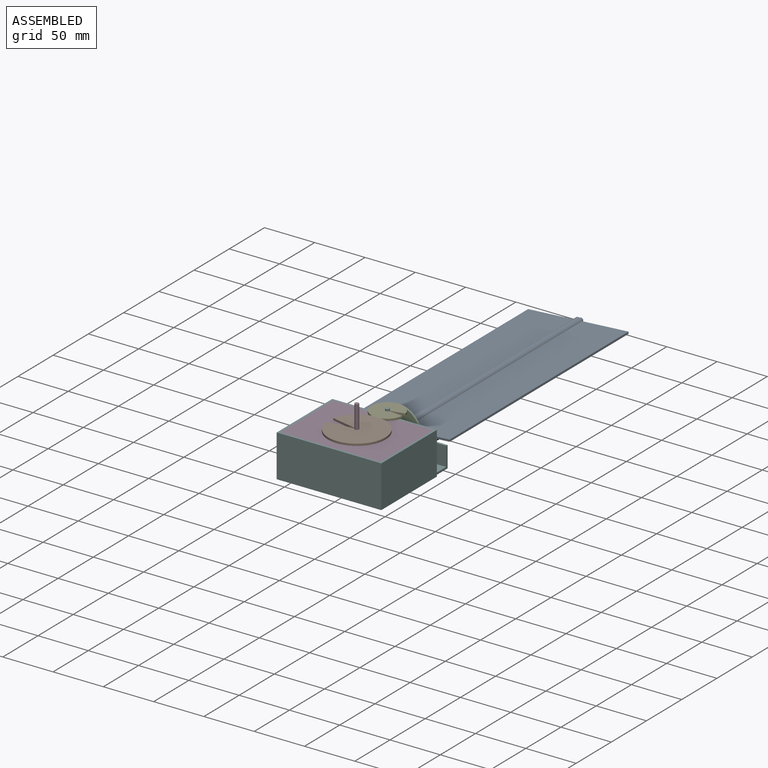
[diagram: assembled view]
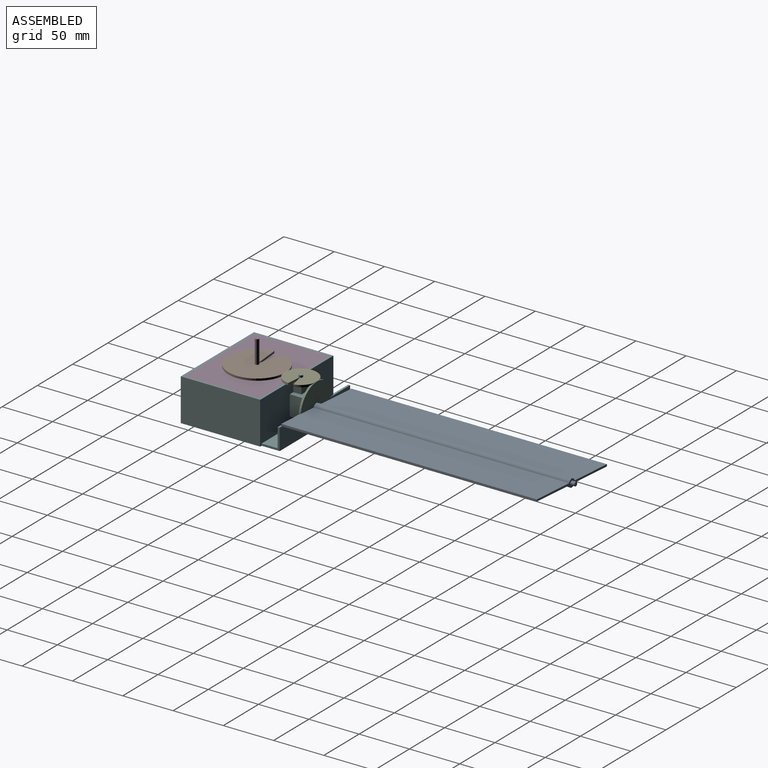
[diagram: assembled view, second angle]
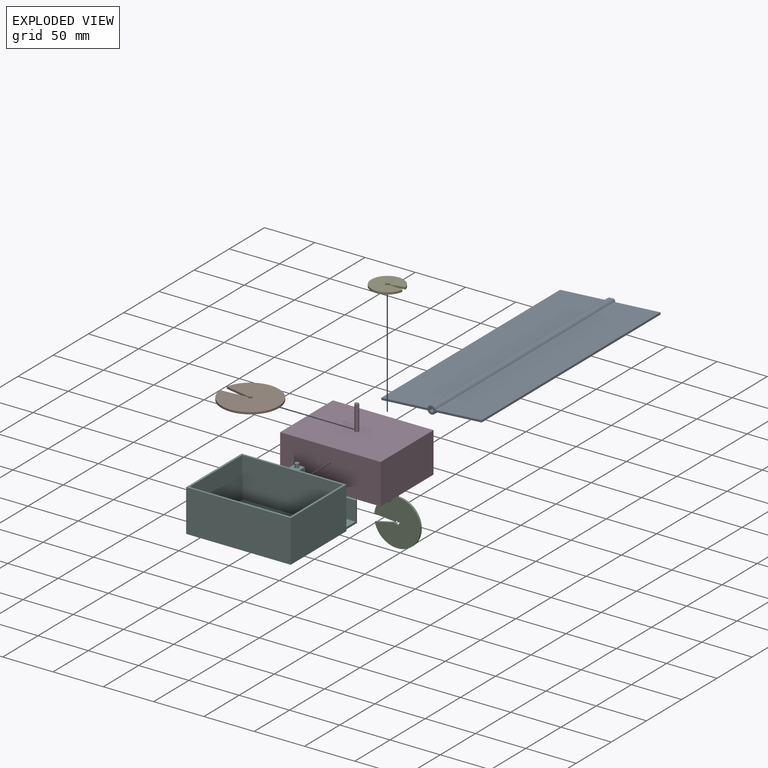
[diagram: exploded view]
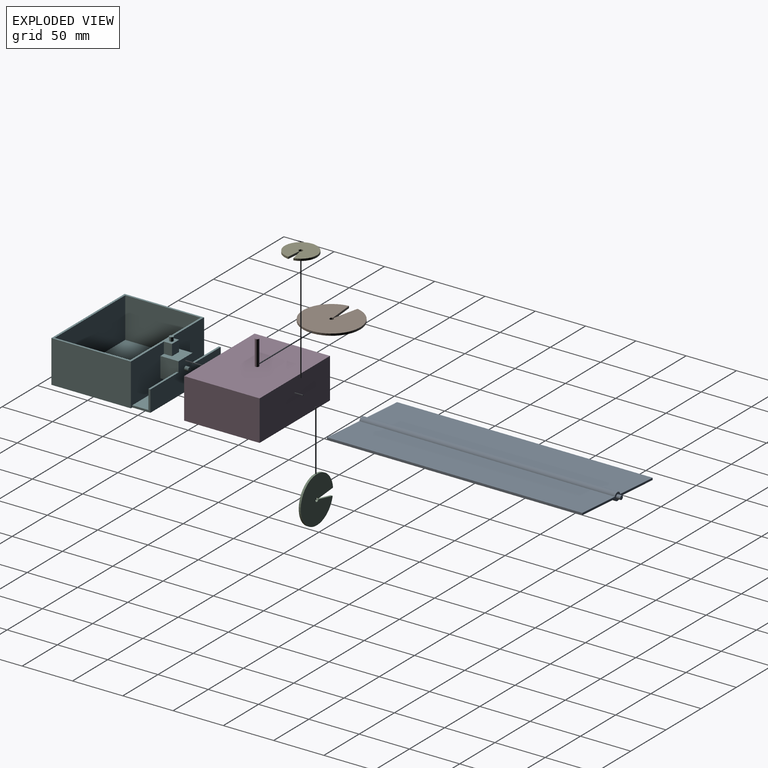
[diagram: exploded view, second angle]
ASSEMBLY  parts=6 mates=6
PART A: 14 faces, bbox 258x8x100 mm
  f0: cylinder r=4mm len=254mm, axis (-1,0,0), area 2678.4mm2, adj f2,f3,f5,f8
  f1: cylinder r=4mm len=254mm, axis (-1,0,0), area 2678.4mm2, adj f2,f3,f6,f7
  f2: plane 100x8mm, normal (1,0,0), area 221.9mm2, adj f0,f1,f4,f5,f6,f7,f8,f9
  f3: plane 100x8mm, normal (-1,0,0), area 221.9mm2, adj f0,f1,f4,f5,f6,f7,f8,f9
  f4: plane 254x2mm, normal (0,0,-1), area 508mm2, adj f2,f3,f5,f6
  f5: plane 254x46.13mm, normal (0,1,0), area 11716.3mm2, adj f0,f2,f3,f4
  f6: plane 254x46.13mm, normal (0,-1,0), area 11716.3mm2, adj f1,f2,f3,f4
  f7: plane 254x46.13mm, normal (0,-1,0), area 11716.3mm2, adj f1,f2,f3,f9
  f8: plane 254x46.13mm, normal (0,1,0), area 11716.3mm2, adj f0,f2,f3,f9
  f9: plane 254x2mm, normal (0,0,1), area 508mm2, adj f2,f3,f7,f8
  f10: cylinder r=2mm len=4mm, axis (-1,0,0), area 50.3mm2, adj f2,f11
  f11: plane 4x4mm, normal (1,0,0), area 12.6mm2, adj f10
  f12: cylinder r=2mm len=4mm, axis (-1,0,0), area 50.3mm2, adj f3,f13
  f13: plane 4x4mm, normal (-1,0,0), area 12.6mm2, adj f12
PART B: 6 faces, bbox 57x56.6x2 mm
  f0: cylinder r=2mm len=4mm, axis (0,0,-1), area 23.9mm2, adj f2,f3,f4,f5
  f1: cylinder r=28.5mm len=57mm, axis (0,0,-1), area 340.2mm2, adj f2,f3,f4,f5
  f2: plane 57x56.65mm, normal (0,0,1), area 2412.2mm2, adj f0,f1,f4,f5
  f3: plane 57x56.65mm, normal (0,0,-1), area 2412.2mm2, adj f0,f1,f4,f5
  f4: plane 26.17x4.15mm, normal (-0.99,0.16,0), area 53mm2, adj f0,f1,f2,f3
  f5: plane 26.17x4.15mm, normal (0.99,0.16,0), area 53mm2, adj f0,f1,f2,f3
PART C: 6 faces, bbox 46x45.7x2 mm
  f0: cylinder r=2mm len=4mm, axis (0,0,-1), area 23.9mm2, adj f2,f3,f4,f5
  f1: cylinder r=23mm len=46mm, axis (0,0,-1), area 274.6mm2, adj f2,f3,f4,f5
  f2: plane 46x45.72mm, normal (0,0,1), area 1566.9mm2, adj f0,f1,f4,f5
  f3: plane 46x45.72mm, normal (0,0,-1), area 1566.9mm2, adj f0,f1,f4,f5
  f4: plane 20.74x3.29mm, normal (-0.99,0.16,0), area 42mm2, adj f0,f1,f2,f3
  f5: plane 20.74x3.29mm, normal (0.99,0.16,0), area 42mm2, adj f0,f1,f2,f3
PART D: 8 faces, bbox 75x100x65 mm
  f0: plane 75x40mm, normal (0,1,0), area 3000mm2, adj f1,f3,f4,f5
  f1: plane 100x40mm, normal (-1,0,0), area 4000mm2, adj f0,f2,f4,f5
  f2: plane 75x40mm, normal (0,-1,0), area 3000mm2, adj f1,f3,f4,f5
  f3: plane 100x40mm, normal (1,0,0), area 4000mm2, adj f0,f2,f4,f5
  f4: plane 100x75mm, normal (0,0,1), area 7487.4mm2, adj f0,f1,f2,f3,f6
  f5: plane 100x75mm, normal (0,0,-1), area 7500mm2, adj f0,f1,f2,f3
  f6: cylinder r=2mm len=25mm, axis (0,0,-1), area 314.2mm2, adj f4,f7
  f7: plane 4x4mm, normal (0,0,1), area 12.6mm2, adj f6
PART E: 6 faces, bbox 32x31.8x2 mm
  f0: cylinder r=2mm len=4mm, axis (0,0,-1), area 23.9mm2, adj f2,f3,f4,f5
  f1: cylinder r=16mm len=32mm, axis (0,0,-1), area 191mm2, adj f2,f3,f4,f5
  f2: plane 32x31.8mm, normal (0,0,1), area 752.1mm2, adj f0,f1,f4,f5
  f3: plane 32x31.8mm, normal (0,0,-1), area 752.1mm2, adj f0,f1,f4,f5
  f4: plane 13.83x2.19mm, normal (-0.99,0.16,0), area 28mm2, adj f0,f1,f2,f3
  f5: plane 13.83x2.19mm, normal (0.99,0.16,0), area 28mm2, adj f0,f1,f2,f3
PART F: 33 faces, bbox 101x104x46 mm
  f0: plane 47x42mm, normal (1,0,0), area 1784mm2, adj f3,f7,f10,f11,f16,f20,f22,f23
  f1: plane 9x8mm, normal (0,1,0), area 72mm2, adj f2,f4,f23,f29
  f2: plane 10x9mm, normal (1,0,0), area 90mm2, adj f1,f3,f23,f29
  f3: plane 9x8mm, normal (0,-1,0), area 72mm2, adj f0,f2,f23,f29
  f4: plane 47x42mm, normal (1,0,0), area 1784mm2, adj f1,f5,f8,f11,f16,f22,f23,f24
  f5: plane 11x8mm, normal (0,1,0), area 88mm2, adj f4,f6,f16,f22
  f6: plane 11x10mm, normal (1,0,0), area 110mm2, adj f5,f7,f16,f22
  f7: plane 11x8mm, normal (0,-1,0), area 88mm2, adj f0,f6,f16,f22
  f8: plane 79x42mm, normal (0,1,0), area 3318mm2, adj f4,f9,f11,f16
  f9: plane 104x42mm, normal (-1,0,0), area 4368mm2, adj f8,f10,f11,f16
  f10: plane 79x42mm, normal (0,-1,0), area 3318mm2, adj f0,f9,f11,f16
  f11: plane 104x97mm, normal (0,0,-1), area 10016mm2, adj f0,f4,f8,f9,f10,f21,f27,f28
  f12: plane 75x40mm, normal (0,-1,0), area 3000mm2, adj f13,f15,f16,f17
  f13: plane 100x40mm, normal (-1,0,0), area 4000mm2, adj f12,f14,f16,f17
  f14: plane 75x40mm, normal (0,1,0), area 3000mm2, adj f13,f15,f16,f17
  f15: plane 100x40mm, normal (1,0,0), area 4000mm2, adj f12,f14,f16,f17
  f16: plane 104x87mm, normal (0,0,1), area 783.4mm2, adj f0,f4,f5,f6,f7,f8,f9,f10
  f17: plane 100x75mm, normal (0,0,1), area 7500mm2, adj f12,f13,f14,f15
  f18: cylinder r=2mm len=4mm, axis (0,0,-1), area 50.3mm2, adj f16,f19
  f19: plane 4x4mm, normal (0,0,1), area 12.6mm2, adj f18
  f20: plane 20x18mm, normal (0,-1,0), area 340mm2, adj f0,f21,f22,f23,f31,f32
  f21: plane 100x31mm, normal (1,0,0), area 2287.4mm2, adj f11,f20,f22,f24,f25,f27,f28,f30
  f22: plane 20x18mm, normal (0,0,1), area 280mm2, adj f0,f4,f5,f6,f7,f20,f21,f24
  f23: plane 20x16mm, normal (0,0,-1), area 240mm2, adj f0,f1,f2,f3,f4,f20,f24,f32
  f24: plane 20x18mm, normal (0,1,0), area 340mm2, adj f4,f21,f22,f23,f30,f32
  f25: cylinder r=2mm len=4mm, axis (-1,0,0), area 50.3mm2, adj f21,f26
  f26: plane 4x4mm, normal (1,0,0), area 12.6mm2, adj f25
  f27: plane 21x18mm, normal (0,-1,0), area 74mm2, adj f0,f11,f21,f29,f31,f32
  f28: plane 21x18mm, normal (0,1,0), area 74mm2, adj f4,f11,f21,f29,f30,f32
  f29: plane 100x16mm, normal (0,0,1), area 1520mm2, adj f0,f1,f2,f3,f4,f27,f28,f32
  f30: plane 40x2mm, normal (0,0,1), area 80mm2, adj f21,f24,f28,f32
  f31: plane 40x2mm, normal (0,0,1), area 80mm2, adj f20,f21,f27,f32
  f32: plane 100x19mm, normal (-1,0,0), area 1700mm2, adj f20,f23,f24,f27,f28,f29,f30,f31
PLACE A rot(axis=(0.56,0.56,0.6),117.9deg) t=(0.81,-2,0.05)mm
PLACE B rot(axis=(0,0,1),86.3deg) t=(0,-61.5,21)mm
PLACE C rot(axis=(-0.6,0.56,0.56),117.9deg) t=(0,-4,0)mm
PLACE D rot(axis=(0,0,-1),90deg) t=(0,-61.5,-19)mm
PLACE E rot(axis=(0,0,-1),86.3deg) t=(0,-18,21)mm
PLACE F rot(axis=(0,0,1),90deg) t=(0,-61.5,-21)mm
MATE revolute B.f1 <-> D.f6  axis (0,0,-1) through (0,-61.5,21)mm
MATE revolute F.f25 <-> C.f1  axis (0,1,0) through (0,-4,0)mm
MATE revolute A.f10 <-> C.f2  axis (0,-1,0) through (0.81,-2,0.05)mm
MATE revolute E.f1 <-> F.f18  axis (0,0,-1) through (0,-18,21)mm
MATE fastened D.f5 <-> F.f17  axis (0,0,-1) through (-50,-99,-19)mm
MATE fastened A.f0 <-> C.f2  axis (0,-1,0) through (0.81,-2,0.05)mm
